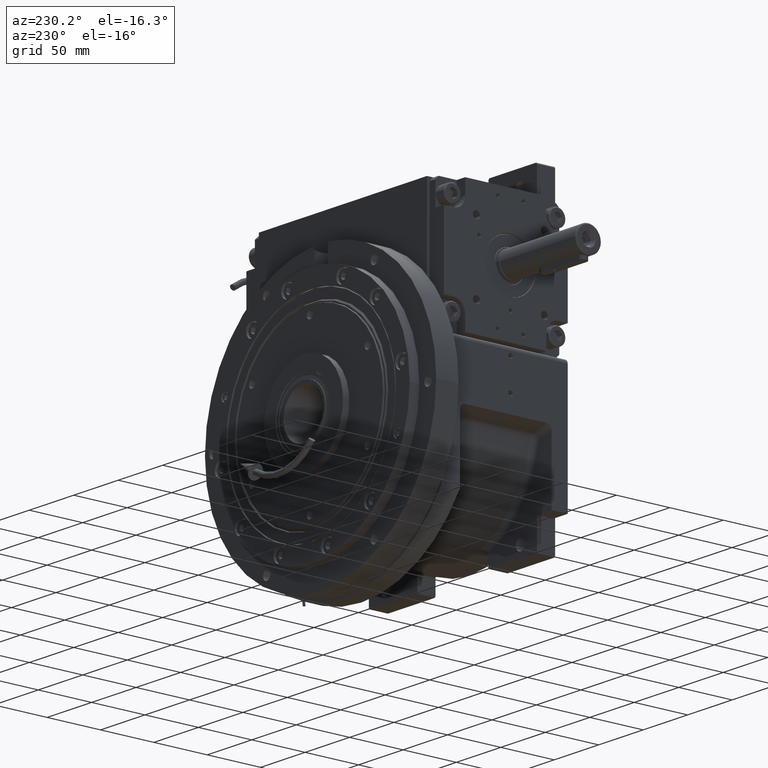
[diagram: clean part render]
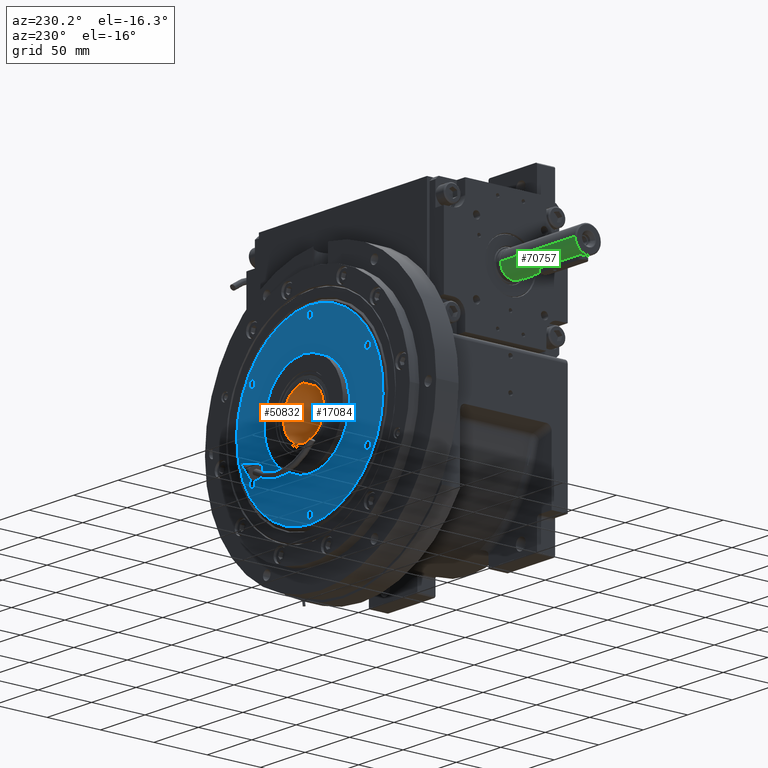
[diagram: same view with three faces highlighted in distinct colors, each labeled with its STEP entity id]
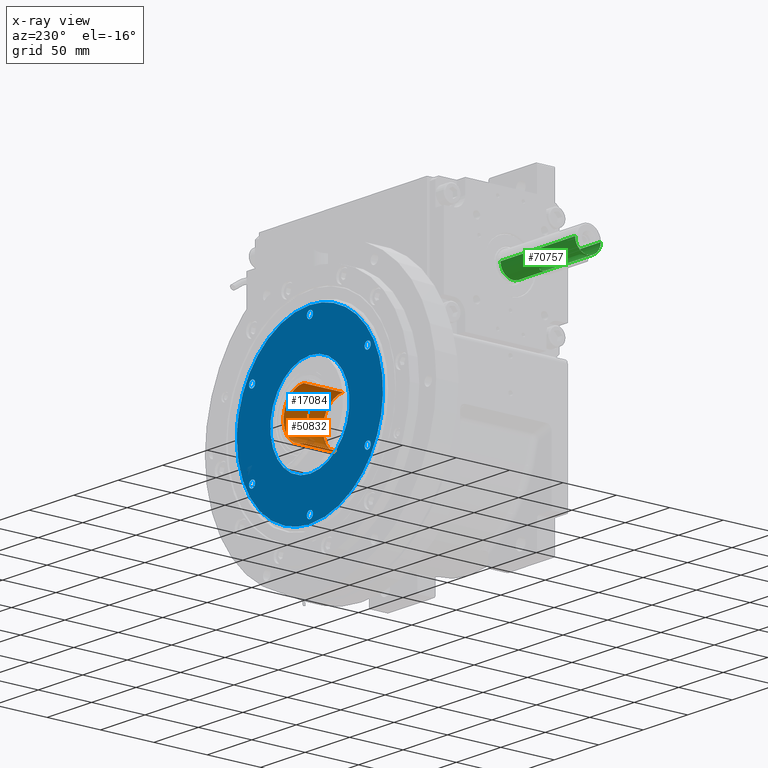
[diagram: x-ray of the same camera — body ghosted, the three highlighted faces saturated]
A machine part, auxiliary view with three faces highlighted in distinct colors.
The next image is the same camera in x-ray (body ghosted, the three faces saturated) — at least one of them is partly hidden behind the body in this view.
Their STEP definitions:

[orange] entity #50832 — the highlighted cylindrical surface (edge-blend (fillet) strip) has radius 22.5 mm, axis along (0, -1, 0).
#434 = VECTOR ( 'NONE', #4083, 1000.000000000000000 ) ;
#1490 = VERTEX_POINT ( 'NONE', #43194 ) ;
#3399 = DIRECTION ( 'NONE',  ( -1.000000000000000000, 0.000000000000000000, 0.000000000000000000 ) ) ;
#4083 = DIRECTION ( 'NONE',  ( 0.000000000000000000, 0.000000000000000000, -1.000000000000000000 ) ) ;
#4627 = EDGE_LOOP ( 'NONE', ( #75003, #19871, #67663, #13908 ) ) ;
#5527 = VERTEX_POINT ( 'NONE', #14344 ) ;
#8346 = EDGE_CURVE ( 'NONE', #19655, #28146, #58724, .T. ) ;
#8877 = DIRECTION ( 'NONE',  ( 1.000000000000000000, -1.578983857244664921E-16, 0.000000000000000000 ) ) ;
#13908 = ORIENTED_EDGE ( 'NONE', *, *, #66194, .F. ) ;
#13915 = EDGE_CURVE ( 'NONE', #1490, #28146, #56119, .T. ) ;
#14344 = CARTESIAN_POINT ( 'NONE',  ( 22.50000000000000000, 1.775709547036180256E-15, 9.999999999999994671 ) ) ;
#19655 = VERTEX_POINT ( 'NONE', #41868 ) ;
#19871 = ORIENTED_EDGE ( 'NONE', *, *, #8346, .T. ) ;
#20811 = AXIS2_PLACEMENT_3D ( 'NONE', #72665, #43588, #65805 ) ;
#28146 = VERTEX_POINT ( 'NONE', #36035 ) ;
#30296 = VECTOR ( 'NONE', #75026, 1000.000000000000000 ) ;
#34822 = LINE ( 'NONE', #51682, #30296 ) ;
#36035 = CARTESIAN_POINT ( 'NONE',  ( -22.50000000000000000, 8.572244476756641794E-16, -26.99999999999999645 ) ) ;
#41311 = FACE_OUTER_BOUND ( 'NONE', #4627, .T. ) ;
#41868 = CARTESIAN_POINT ( 'NONE',  ( 22.50000000000000000, 1.775709547036180256E-15, -26.99999999999999645 ) ) ;
#43194 = CARTESIAN_POINT ( 'NONE',  ( -22.50000000000000000, 8.572244476756641794E-16, 9.999999999999994671 ) ) ;
#43588 = DIRECTION ( 'NONE',  ( 0.000000000000000000, 0.000000000000000000, -1.000000000000000000 ) ) ;
#46730 = EDGE_CURVE ( 'NONE', #5527, #19655, #34822, .T. ) ;
#48549 = CARTESIAN_POINT ( 'NONE',  ( 0.000000000000000000, 2.571673343026990270E-15, 9.999999999999994671 ) ) ;
#49351 = AXIS2_PLACEMENT_3D ( 'NONE', #74672, #67451, #8877 ) ;
#50832 = ADVANCED_FACE ( 'NONE', ( #41311 ), #65428, .F. ) ;
#51682 = CARTESIAN_POINT ( 'NONE',  ( 22.50000000000000000, 5.327128641108539387E-15, 9.999999999999994671 ) ) ;
#56119 = LINE ( 'NONE', #56498, #434 ) ;
#56498 = CARTESIAN_POINT ( 'NONE',  ( -22.50000000000000000, 2.571673343026990270E-15, 9.999999999999994671 ) ) ;
#58724 = CIRCLE ( 'NONE', #20811, 22.50000000000000000 ) ;
#64665 = DIRECTION ( 'NONE',  ( 0.000000000000000000, 0.000000000000000000, 1.000000000000000000 ) ) ;
#65428 = CYLINDRICAL_SURFACE ( 'NONE', #74547, 22.50000000000000000 ) ;
#65805 = DIRECTION ( 'NONE',  ( 1.000000000000000000, -1.578983857244664921E-16, 0.000000000000000000 ) ) ;
#66194 = EDGE_CURVE ( 'NONE', #5527, #1490, #72578, .T. ) ;
#67451 = DIRECTION ( 'NONE',  ( 0.000000000000000000, 0.000000000000000000, -1.000000000000000000 ) ) ;
#67663 = ORIENTED_EDGE ( 'NONE', *, *, #13915, .F. ) ;
#72578 = CIRCLE ( 'NONE', #49351, 22.50000000000000000 ) ;
#72665 = CARTESIAN_POINT ( 'NONE',  ( 0.000000000000000000, 3.552713678800499352E-15, -26.99999999999999645 ) ) ;
#74547 = AXIS2_PLACEMENT_3D ( 'NONE', #48549, #64665, #3399 ) ;
#74672 = CARTESIAN_POINT ( 'NONE',  ( 0.000000000000000000, 3.552713678800499352E-15, 9.999999999999994671 ) ) ;
#75003 = ORIENTED_EDGE ( 'NONE', *, *, #46730, .T. ) ;
#75026 = DIRECTION ( 'NONE',  ( 0.000000000000000000, 0.000000000000000000, -1.000000000000000000 ) ) ;

[blue] entity #17084 — the highlighted planar face has unit normal (0, -1, -0).
#685 = CARTESIAN_POINT ( 'NONE',  ( 34.09999999999973141, 110.5000000000000000, 64.95190528383290030 ) ) ;
#706 = ORIENTED_EDGE ( 'NONE', *, *, #1561, .F. ) ;
#1561 = EDGE_CURVE ( 'NONE', #4782, #9465, #61932, .T. ) ;
#2270 = CARTESIAN_POINT ( 'NONE',  ( 79.57457908632085264, 110.4999999999999858, 20.63093614355465988 ) ) ;
#2645 = CARTESIAN_POINT ( 'NONE',  ( -26.46591210633614466, 110.5000000000000426, 77.99484015378844504 ) ) ;
#3028 = CARTESIAN_POINT ( 'NONE',  ( 41.17346744512528289, 110.4999999999999858, 71.33314274904846286 ) ) ;
#3096 = CARTESIAN_POINT ( 'NONE',  ( -40.89999999999999858, 110.5000000000000000, -64.95190528383290030 ) ) ;
#3106 = CARTESIAN_POINT ( 'NONE',  ( 40.89999999999999858, 110.5000000000000000, -64.95190528383290030 ) ) ;
#3305 = CARTESIAN_POINT ( 'NONE',  ( 2.842170943040403268E-14, 110.5000000000000000, -7.105427357601008170E-15 ) ) ;
#3744 = DIRECTION ( 'NONE',  ( -1.000000000000000000, 4.081702296416015997E-15, 0.000000000000000000 ) ) ;
#4349 = CARTESIAN_POINT ( 'NONE',  ( 82.18217394222040184, 110.4999999999999716, -5.413439777049708468 ) ) ;
#4465 = AXIS2_PLACEMENT_3D ( 'NONE', #42134, #13026, #36357 ) ;
#4782 = VERTEX_POINT ( 'NONE', #35398 ) ;
#4809 = ORIENTED_EDGE ( 'NONE', *, *, #72701, .T. ) ;
#5349 = CIRCLE ( 'NONE', #26082, 3.400000000000000355 ) ;
#5447 = CIRCLE ( 'NONE', #75081, 3.400000000000000355 ) ;
#5488 = CARTESIAN_POINT ( 'NONE',  ( 73.74813151264139321, 110.5000000000000000, -36.37479690083411299 ) ) ;
#5593 = CARTESIAN_POINT ( 'NONE',  ( -34.10000000000026432, 110.5000000000000000, 64.95190528383290030 ) ) ;
#5748 = ORIENTED_EDGE ( 'NONE', *, *, #12178, .F. ) ;
#5872 = CARTESIAN_POINT ( 'NONE',  ( 41.17286106389226319, 110.4999999999999858, -71.33364164011456410 ) ) ;
#6246 = CARTESIAN_POINT ( 'NONE',  ( 69.83423930135026581, 110.4999999999999858, -43.41667302301342346 ) ) ;
#7963 = EDGE_LOOP ( 'NONE', ( #45401, #54329 ) ) ;
#7998 = CARTESIAN_POINT ( 'NONE',  ( 78.32095192439939524, 110.4999999999999858, 25.16328900372727162 ) ) ;
#8371 = CARTESIAN_POINT ( 'NONE',  ( -73.86467355760834153, 110.5000000000000142, 36.43724814399683254 ) ) ;
#8419 = FACE_BOUND ( 'NONE', #10254, .T. ) ;
#8529 = CIRCLE ( 'NONE', #14634, 44.45000000000000284 ) ;
#8558 = CARTESIAN_POINT ( 'NONE',  ( -37.50000000000026290, 110.5000000000000000, 64.95190528383290030 ) ) ;
#8749 = CARTESIAN_POINT ( 'NONE',  ( -36.43677092628834657, 110.5000000000000000, 73.86494086435298811 ) ) ;
#8788 = VERTEX_POINT ( 'NONE', #685 ) ;
#8795 = EDGE_LOOP ( 'NONE', ( #43867, #706 ) ) ;
#8801 = FACE_BOUND ( 'NONE', #8795, .T. ) ;
#8908 = CARTESIAN_POINT ( 'NONE',  ( -82.18412582237159825, 110.5000000000000426, -2.706922455996795041 ) ) ;
#8934 = DIRECTION ( 'NONE',  ( 1.873544649899903038E-30, 1.000000000000000000, -2.089831575764999827E-15 ) ) ;
#9097 = VERTEX_POINT ( 'NONE', #29161 ) ;
#9465 = VERTEX_POINT ( 'NONE', #26496 ) ;
#9505 = CARTESIAN_POINT ( 'NONE',  ( 73.74790136345738745, 110.5000000000000000, 36.37523474268279244 ) ) ;
#9783 = CARTESIAN_POINT ( 'NONE',  ( 34.10000000000000142, 110.5000000000000000, -64.95190528383290030 ) ) ;
#9861 = DIRECTION ( 'NONE',  ( 1.873544649899903038E-30, 1.000000000000000000, 1.588892204136985810E-33 ) ) ;
#10034 = CARTESIAN_POINT ( 'NONE',  ( -80.67302273752034125, 110.5000000000000284, -15.69862675829507204 ) ) ;
#10254 = EDGE_LOOP ( 'NONE', ( #14961, #66626 ) ) ;
#10434 = CARTESIAN_POINT ( 'NONE',  ( 80.54158547785669953, 110.4999999999999858, -16.35931090249731312 ) ) ;
#10631 = CARTESIAN_POINT ( 'NONE',  ( -75.00000000000000000, 110.5000000000000000, 1.043609643147581515E-14 ) ) ;
#11196 = CARTESIAN_POINT ( 'NONE',  ( 54.29822300750021924, 110.4999999999999432, -61.93031885547897986 ) ) ;
#11384 = CARTESIAN_POINT ( 'NONE',  ( 82.18222187922351907, 110.4999999999999858, 5.413844607824314537 ) ) ;
#11574 = CARTESIAN_POINT ( 'NONE',  ( 79.57472203535758126, 110.4999999999999858, -20.63044246711258722 ) ) ;
#11911 = CIRCLE ( 'NONE', #13108, 44.45000000000000284 ) ;
#11938 = VERTEX_POINT ( 'NONE', #60699 ) ;
#12074 = CARTESIAN_POINT ( 'NONE',  ( -75.00000000000000000, 110.5000000000000000, 7.993605777300641153E-15 ) ) ;
#12174 = EDGE_CURVE ( 'NONE', #67565, #49144, #55424, .T. ) ;
#12178 = EDGE_CURVE ( 'NONE', #60125, #9097, #5349, .T. ) ;
#12223 = B_SPLINE_CURVE_WITH_KNOTS ( 'NONE', 3,
 ( #48946, #26720, #14088, #38581, #43976, #14852, #56196, #26344, #50076, #60808, #38201, #73422, #8371, #55440, #20243, #37827, #49697, #61555, #55059, #8749, #2645, #25963, #42841, #32441, #19868, #72668, #37050, #32062, #61183, #3028, #55813, #44347, #67706, #15238, #61940, #32826, #9505, #71911, #60420, #7998, #2270, #31305, #54686, #25584, #27099, #16377, #11384, #21761 ),
 .UNSPECIFIED., .F., .F.,
 ( 4, 1, 1, 1, 2, 2, 2, 2, 2, 2, 2, 2, 2, 2, 2, 2, 2, 2, 2, 2, 2, 1, 1, 1, 2, 2, 4 ),
 ( 0.000000000000000000, 0.03124999999999995837, 0.04687499999999995143, 0.05468749999999994449, 0.05859374999999993755, 0.06249999999999991673, 0.09374999999999993061, 0.1249999999999999445, 0.1874999999999999722, 0.2500000000000000000, 0.3125000000000000000, 0.3750000000000000555, 0.4375000000000000555, 0.5000000000000001110, 0.5625000000000001110, 0.6250000000000001110, 0.6875000000000002220, 0.7500000000000002220, 0.8125000000000001110, 0.8437500000000001110, 0.8750000000000000000, 0.9062500000000000000, 0.9218750000000000000, 0.9296875000000000000, 0.9335937500000000000, 0.9375000000000000000, 1.000000000000000000 ),
 .UNSPECIFIED. ) ;
#12713 = CARTESIAN_POINT ( 'NONE',  ( 74.89780891093313642, 110.5000000000000284, -33.94318345663835856 ) ) ;
#12846 = AXIS2_PLACEMENT_3D ( 'NONE', #10631, #33967, #70346 ) ;
#13026 = DIRECTION ( 'NONE',  ( -1.836909530733546166E-16, -1.000000000000000000, -9.259541093800318768E-31 ) ) ;
#13108 = AXIS2_PLACEMENT_3D ( 'NONE', #3305, #38859, #38103 ) ;
#13606 = CIRCLE ( 'NONE', #62484, 3.400000000000000355 ) ;
#14088 = CARTESIAN_POINT ( 'NONE',  ( -81.98529366466023305, 110.4999999999999716, 6.740478288382624861 ) ) ;
#14445 = ORIENTED_EDGE ( 'NONE', *, *, #67660, .F. ) ;
#14559 = DIRECTION ( 'NONE',  ( -1.000000000000000000, 0.000000000000000000, -1.502066445081090976E-15 ) ) ;
#14634 = AXIS2_PLACEMENT_3D ( 'NONE', #49772, #32518, #14931 ) ;
#14852 = CARTESIAN_POINT ( 'NONE',  ( -80.85911346599473859, 110.4999999999999858, 14.71011054370710980 ) ) ;
#14892 = AXIS2_PLACEMENT_3D ( 'NONE', #73877, #32526, #14559 ) ;
#14931 = DIRECTION ( 'NONE',  ( 1.000000000000000000, -6.244223985518314942E-16, 2.023907469293703493E-16 ) ) ;
#14961 = ORIENTED_EDGE ( 'NONE', *, *, #53649, .F. ) ;
#15011 = CARTESIAN_POINT ( 'NONE',  ( -21.32673791258707396, 110.5000000000000000, -79.55386997823406148 ) ) ;
#15221 = CARTESIAN_POINT ( 'NONE',  ( 75.00000000000000000, 110.5000000000000000, -4.884981308350742420E-15 ) ) ;
#15238 = CARTESIAN_POINT ( 'NONE',  ( 65.33793898011035139, 110.4999999999999716, 50.14568632257584824 ) ) ;
#15399 = CARTESIAN_POINT ( 'NONE',  ( -54.29850716401767841, 110.5000000000000000, -61.92993699073153380 ) ) ;
#15783 = CARTESIAN_POINT ( 'NONE',  ( -71.33364469616624604, 110.5000000000000142, -41.17277949763079903 ) ) ;
#16292 = CIRCLE ( 'NONE', #65213, 3.400000000000000355 ) ;
#16377 = CARTESIAN_POINT ( 'NONE',  ( 81.65593245021590008, 110.4999999999999716, 10.75709170780790025 ) ) ;
#17084 = ADVANCED_FACE ( 'NONE', ( #43645, #8419, #31742, #20295, #37876, #61233, #8801, #26394 ), #49748, .F. ) ;
#17228 = DIRECTION ( 'NONE',  ( 1.000000000000000000, -4.081702296416015997E-15, 0.000000000000000000 ) ) ;
#17321 = CARTESIAN_POINT ( 'NONE',  ( 80.33387830201940005, 110.4999999999999716, -17.35095847086826737 ) ) ;
#18085 = CARTESIAN_POINT ( 'NONE',  ( 80.47346700800821395, 110.4999999999999858, -16.69126919466643955 ) ) ;
#18554 = EDGE_CURVE ( 'NONE', #69430, #53876, #67516, .T. ) ;
#18906 = ORIENTED_EDGE ( 'NONE', *, *, #74274, .F. ) ;
#19137 = B_SPLINE_CURVE_WITH_KNOTS ( 'NONE', 3,
 ( #33392, #4349, #27657, #10434, #18085, #17321, #35299, #11574, #53298, #58664, #12713, #5488, #41809, #6246, #69782, #47181, #11196, #28777, #5872, #41041, #51773, #70162, #29163, #75117, #70532 ),
 .UNSPECIFIED., .F., .F.,
 ( 4, 2, 2, 1, 1, 1, 2, 2, 2, 2, 2, 2, 2, 4 ),
 ( 0.000000000000000000, 0.06249999648971088506, 0.06640624627031782579, 0.07031249605092476651, 0.07812499561213863408, 0.09374999473456628596, 0.1249999929794215758, 0.1562499912242768518, 0.1874999894691321833, 0.2499999859588427631, 0.3124999824485532596, 0.3749999789382638671, 0.4374999754279744746, 0.4999999719176850821 ),
 .UNSPECIFIED. ) ;
#19272 = EDGE_LOOP ( 'NONE', ( #18906, #5748 ) ) ;
#19621 = CARTESIAN_POINT ( 'NONE',  ( 82.18603400874251008, 110.5000015448018047, 1.581323405575299952E-07 ) ) ;
#19868 = CARTESIAN_POINT ( 'NONE',  ( 5.396190313849494657, 110.5000000000000000, 82.18606838660620895 ) ) ;
#20243 = CARTESIAN_POINT ( 'NONE',  ( -65.33761603904908100, 110.5000000000000426, 50.14632643991264871 ) ) ;
#20295 = FACE_BOUND ( 'NONE', #27872, .T. ) ;
#21035 = CIRCLE ( 'NONE', #14892, 3.400000000000000355 ) ;
#21398 = ORIENTED_EDGE ( 'NONE', *, *, #31743, .T. ) ;
#21457 = ORIENTED_EDGE ( 'NONE', *, *, #29822, .F. ) ;
#21535 = CARTESIAN_POINT ( 'NONE',  ( -76.96293238175633178, 110.5000000000000284, -28.95791760141081284 ) ) ;
#21536 = EDGE_LOOP ( 'NONE', ( #21457, #22058 ) ) ;
#21761 = CARTESIAN_POINT ( 'NONE',  ( 82.18603400874251008, 110.5000015448018047, 1.581323405575299952E-07 ) ) ;
#22058 = ORIENTED_EDGE ( 'NONE', *, *, #27419, .T. ) ;
#23016 = CARTESIAN_POINT ( 'NONE',  ( 37.49999999999973710, 110.5000000000000000, 64.95190528383290030 ) ) ;
#23576 = DIRECTION ( 'NONE',  ( 1.873544649899903038E-30, 1.000000000000000000, 1.588892204136985810E-33 ) ) ;
#23733 = DIRECTION ( 'NONE',  ( 1.873544649899903038E-30, 1.000000000000000000, -2.089831575764995094E-15 ) ) ;
#24134 = CIRCLE ( 'NONE', #52205, 3.400000000000000355 ) ;
#24378 = VERTEX_POINT ( 'NONE', #19621 ) ;
#25207 = CARTESIAN_POINT ( 'NONE',  ( 37.49999999999973710, 110.5000000000000000, 64.95190528383290030 ) ) ;
#25214 = DIRECTION ( 'NONE',  ( -1.000000000000000000, 0.000000000000000000, 0.000000000000000000 ) ) ;
#25584 = CARTESIAN_POINT ( 'NONE',  ( 80.47346500646517597, 110.4999999999999716, 16.69135747300155614 ) ) ;
#25963 = CARTESIAN_POINT ( 'NONE',  ( -21.32594694526337165, 110.5000000000000000, 79.55394827524149548 ) ) ;
#26082 = AXIS2_PLACEMENT_3D ( 'NONE', #8558, #8934, #49498 ) ;
#26344 = CARTESIAN_POINT ( 'NONE',  ( -80.67297687466572143, 110.5000000000000284, 15.69867770626846770 ) ) ;
#26394 = FACE_BOUND ( 'NONE', #21536, .T. ) ;
#26496 = CARTESIAN_POINT ( 'NONE',  ( 71.60000000000000853, 110.5000000000000000, -3.645078005937192810E-16 ) ) ;
#26501 = CARTESIAN_POINT ( 'NONE',  ( -5.396965920549728679, 110.4999999999999858, -82.18606886526323763 ) ) ;
#26720 = CARTESIAN_POINT ( 'NONE',  ( -82.18410185386885303, 110.4999999999999858, 2.706720040397336824 ) ) ;
#26799 = EDGE_CURVE ( 'NONE', #49144, #67565, #24134, .T. ) ;
#27099 = CARTESIAN_POINT ( 'NONE',  ( 80.54161329299185468, 110.4999999999999716, 16.35928189945978062 ) ) ;
#27419 = EDGE_CURVE ( 'NONE', #42058, #27511, #11911, .T. ) ;
#27511 = VERTEX_POINT ( 'NONE', #44251 ) ;
#27657 = CARTESIAN_POINT ( 'NONE',  ( 81.65587465362948194, 110.4999999999999432, -10.75668806138983946 ) ) ;
#27872 = EDGE_LOOP ( 'NONE', ( #45933, #55149 ) ) ;
#28777 = CARTESIAN_POINT ( 'NONE',  ( 50.14771722367689222, 110.4999999999999716, -65.33645767331709919 ) ) ;
#29161 = CARTESIAN_POINT ( 'NONE',  ( -40.90000000000026148, 110.5000000000000000, 64.95190528383290030 ) ) ;
#29163 = CARTESIAN_POINT ( 'NONE',  ( 10.74078281828397508, 110.4999999999999716, -81.65971843768956262 ) ) ;
#29821 = VERTEX_POINT ( 'NONE', #3106 ) ;
#29822 = EDGE_CURVE ( 'NONE', #42058, #27511, #8529, .T. ) ;
#30748 = CARTESIAN_POINT ( 'NONE',  ( -37.50000000000000000, 110.5000000000000000, -64.95190528383290030 ) ) ;
#30950 = CARTESIAN_POINT ( 'NONE',  ( 37.50000000000000000, 110.5000000000000000, -64.95190528383290030 ) ) ;
#31173 = CIRCLE ( 'NONE', #12846, 3.400000000000000355 ) ;
#31305 = CARTESIAN_POINT ( 'NONE',  ( 80.11850087870728032, 110.4999999999999574, 18.33894396968164386 ) ) ;
#31493 = DIRECTION ( 'NONE',  ( 1.873544649899903038E-30, 1.000000000000000000, -2.089831575764980106E-15 ) ) ;
#31742 = FACE_BOUND ( 'NONE', #7963, .T. ) ;
#31743 = EDGE_CURVE ( 'NONE', #53876, #24378, #12223, .T. ) ;
#32062 = CARTESIAN_POINT ( 'NONE',  ( 26.46597584794664115, 110.5000000000000000, 77.99473097346013617 ) ) ;
#32441 = CARTESIAN_POINT ( 'NONE',  ( -5.396175763947936410, 110.5000000000000000, 82.18599094346397749 ) ) ;
#32518 = DIRECTION ( 'NONE',  ( 6.394085361170760874E-16, 1.000000000000000000, -2.395852276087255720E-17 ) ) ;
#32526 = DIRECTION ( 'NONE',  ( 1.873544649899903038E-30, 1.000000000000000000, 1.588892204136985810E-33 ) ) ;
#32580 = CARTESIAN_POINT ( 'NONE',  ( -34.10000000000000142, 110.5000000000000000, -64.95190528383290030 ) ) ;
#32778 = CARTESIAN_POINT ( 'NONE',  ( -37.50000000000000000, 110.5000000000000000, -64.95190528383290030 ) ) ;
#32826 = CARTESIAN_POINT ( 'NONE',  ( 71.21633143618713291, 110.5000000000000000, 41.11144999242241482 ) ) ;
#32983 = CARTESIAN_POINT ( 'NONE',  ( -61.93037135062296272, 110.5000000000000142, -54.29808050887305626 ) ) ;
#33392 = CARTESIAN_POINT ( 'NONE',  ( 82.18603400874251008, 110.5000015448018047, 1.581323405575299952E-07 ) ) ;
#33967 = DIRECTION ( 'NONE',  ( 1.873544649899903038E-30, 1.000000000000000000, 1.588892204136985810E-33 ) ) ;
#34030 = EDGE_LOOP ( 'NONE', ( #14445, #35405 ) ) ;
#34854 = DIRECTION ( 'NONE',  ( 1.873544649899903038E-30, 1.000000000000000000, -2.089831575764989967E-15 ) ) ;
#35299 = CARTESIAN_POINT ( 'NONE',  ( 80.11857142980544211, 110.5000000000000142, -18.33865731567764001 ) ) ;
#35364 = DIRECTION ( 'NONE',  ( 1.000000000000000000, 0.000000000000000000, 1.436759208338440266E-15 ) ) ;
#35398 = CARTESIAN_POINT ( 'NONE',  ( 78.40000000000000568, 110.5000000000000000, -3.944304526105059027E-28 ) ) ;
#35405 = ORIENTED_EDGE ( 'NONE', *, *, #52061, .F. ) ;
#35516 = CARTESIAN_POINT ( 'NONE',  ( -37.50000000000026290, 110.5000000000000000, 64.95190528383290030 ) ) ;
#36338 = AXIS2_PLACEMENT_3D ( 'NONE', #35516, #36627, #54261 ) ;
#36357 = DIRECTION ( 'NONE',  ( -1.000000000000000000, 1.836909530733546166E-16, 0.000000000000000000 ) ) ;
#36627 = DIRECTION ( 'NONE',  ( 4.179663151530024898E-15, 1.000000000000000000, 2.089831575764995094E-15 ) ) ;
#37050 = CARTESIAN_POINT ( 'NONE',  ( 21.32597268393185175, 110.4999999999999858, 79.55402177641883554 ) ) ;
#37599 = CARTESIAN_POINT ( 'NONE',  ( -73.86436510405066258, 110.5000000000000000, -36.43783581387070569 ) ) ;
#37827 = CARTESIAN_POINT ( 'NONE',  ( -61.92976105365575279, 110.5000000000000142, 54.29857669836266609 ) ) ;
#37876 = FACE_BOUND ( 'NONE', #19272, .T. ) ;
#37990 = CARTESIAN_POINT ( 'NONE',  ( -80.73621674438206242, 110.5000000000000000, -15.37038518178290758 ) ) ;
#38103 = DIRECTION ( 'NONE',  ( 1.000000000000000000, -3.122111992759157471E-16, 2.823168139440055505E-16 ) ) ;
#38201 = CARTESIAN_POINT ( 'NONE',  ( -77.86821339563776689, 110.5000000000000426, 26.42818210147167335 ) ) ;
#38242 = CARTESIAN_POINT ( 'NONE',  ( 44.44999999999973994, 110.5000000000000000, 5.443555022209685141E-15 ) ) ;
#38581 = CARTESIAN_POINT ( 'NONE',  ( -81.41049721478043466, 110.4999999999999858, 11.40046640563004487 ) ) ;
#38859 = DIRECTION ( 'NONE',  ( -3.197042680585404103E-16, -1.000000000000000000, -2.395852276087259418E-17 ) ) ;
#39119 = CARTESIAN_POINT ( 'NONE',  ( -10.74076764840350862, 110.4999999999999858, -81.65964476131456706 ) ) ;
#40447 = CARTESIAN_POINT ( 'NONE',  ( 40.89999999999973568, 110.5000000000000000, 64.95190528383290030 ) ) ;
#41041 = CARTESIAN_POINT ( 'NONE',  ( 36.43741795798403871, 110.5000000000000142, -73.86467248177763167 ) ) ;
#41753 = DIRECTION ( 'NONE',  ( -1.000000000000000000, 0.000000000000000000, 0.000000000000000000 ) ) ;
#41809 = CARTESIAN_POINT ( 'NONE',  ( 71.21656534630055546, 110.4999999999999858, -41.11101387479465075 ) ) ;
#42058 = VERTEX_POINT ( 'NONE', #38242 ) ;
#42134 = CARTESIAN_POINT ( 'NONE',  ( 2.030702568688749067E-14, 110.5000000000000000, 0.000000000000000000 ) ) ;
#42455 = EDGE_LOOP ( 'NONE', ( #21398, #4809, #56602 ) ) ;
#42841 = CARTESIAN_POINT ( 'NONE',  ( -10.74154236511540184, 110.5000000000000000, 81.65956691445188653 ) ) ;
#43645 = FACE_OUTER_BOUND ( 'NONE', #42455, .T. ) ;
#43867 = ORIENTED_EDGE ( 'NONE', *, *, #45342, .F. ) ;
#43976 = CARTESIAN_POINT ( 'NONE',  ( -81.03738559922308582, 110.5000000000000284, 13.71894467123656725 ) ) ;
#44137 = CARTESIAN_POINT ( 'NONE',  ( -26.46516568415016835, 110.5000000000000284, -77.99506614383170700 ) ) ;
#44251 = CARTESIAN_POINT ( 'NONE',  ( -44.45000000000026574, 110.5000000000000000, -7.258073362946378332E-15 ) ) ;
#44347 = CARTESIAN_POINT ( 'NONE',  ( 54.29876972623154785, 110.4999999999999858, 61.92967476324737675 ) ) ;
#44504 = CARTESIAN_POINT ( 'NONE',  ( -78.39999999999997726, 110.5000000000000000, 2.697109197274817195E-15 ) ) ;
#44849 = AXIS2_PLACEMENT_3D ( 'NONE', #15221, #9861, #35364 ) ;
#44885 = CARTESIAN_POINT ( 'NONE',  ( -41.17304319471159602, 110.5000000000000426, -71.33342587732616380 ) ) ;
#45342 = EDGE_CURVE ( 'NONE', #9465, #4782, #21035, .T. ) ;
#45401 = ORIENTED_EDGE ( 'NONE', *, *, #26799, .F. ) ;
#45933 = ORIENTED_EDGE ( 'NONE', *, *, #58221, .F. ) ;
#46784 = EDGE_CURVE ( 'NONE', #29821, #53332, #67040, .T. ) ;
#47181 = CARTESIAN_POINT ( 'NONE',  ( 61.93063791654595462, 110.5000000000000000, -54.29769947772633287 ) ) ;
#47463 = DIRECTION ( 'NONE',  ( 1.000000000000000000, 0.000000000000000000, 0.000000000000000000 ) ) ;
#48562 = DIRECTION ( 'NONE',  ( 1.873544649899903038E-30, 1.000000000000000000, 2.089831575764995094E-15 ) ) ;
#48934 = VERTEX_POINT ( 'NONE', #40447 ) ;
#48946 = CARTESIAN_POINT ( 'NONE',  ( -82.18603400874098952, 110.5000015448012078, -1.581323299043360018E-07 ) ) ;
#49104 = CARTESIAN_POINT ( 'NONE',  ( -79.42706700825716837, 110.5000000000000000, -21.28825086087052298 ) ) ;
#49144 = VERTEX_POINT ( 'NONE', #3096 ) ;
#49498 = DIRECTION ( 'NONE',  ( 1.000000000000000000, 0.000000000000000000, 0.000000000000000000 ) ) ;
#49697 = CARTESIAN_POINT ( 'NONE',  ( -54.29909472632881773, 110.5000000000000000, 61.92944677904171868 ) ) ;
#49748 = PLANE ( 'NONE',  #4465 ) ;
#49772 = CARTESIAN_POINT ( 'NONE',  ( 1.776356839400212599E-14, 110.5000000000000000, -3.552713678800504085E-15 ) ) ;
#49857 = CARTESIAN_POINT ( 'NONE',  ( -80.85914935550086113, 110.5000000000000142, -14.71020086056657838 ) ) ;
#50076 = CARTESIAN_POINT ( 'NONE',  ( -80.08037051196102141, 110.5000000000000142, 18.67829002333699506 ) ) ;
#50087 = CARTESIAN_POINT ( 'NONE',  ( -82.18603400874098952, 110.5000015448012078, -1.581323299043360018E-07 ) ) ;
#50238 = CARTESIAN_POINT ( 'NONE',  ( -50.14754556814370545, 110.5000000000000000, -65.33666926840521683 ) ) ;
#50612 = CARTESIAN_POINT ( 'NONE',  ( -65.33708734634375048, 110.5000000000000142, -50.14696052069778887 ) ) ;
#51773 = CARTESIAN_POINT ( 'NONE',  ( 26.46527515611211356, 110.5000000000000284, -77.99510436064866781 ) ) ;
#52061 = EDGE_CURVE ( 'NONE', #48934, #8788, #13606, .T. ) ;
#52205 = AXIS2_PLACEMENT_3D ( 'NONE', #32778, #61144, #3744 ) ;
#52978 = AXIS2_PLACEMENT_3D ( 'NONE', #30748, #31493, #72477 ) ;
#53298 = CARTESIAN_POINT ( 'NONE',  ( 78.32115647600109298, 110.4999999999999716, -25.16263082416817198 ) ) ;
#53332 = VERTEX_POINT ( 'NONE', #9783 ) ;
#53649 = EDGE_CURVE ( 'NONE', #53332, #29821, #71234, .T. ) ;
#53876 = VERTEX_POINT ( 'NONE', #50087 ) ;
#54261 = DIRECTION ( 'NONE',  ( -1.000000000000000000, 4.081702296416015997E-15, 0.000000000000000000 ) ) ;
#54329 = ORIENTED_EDGE ( 'NONE', *, *, #12174, .F. ) ;
#54686 = CARTESIAN_POINT ( 'NONE',  ( 80.33384769217845189, 110.4999999999999858, 17.35112966435321979 ) ) ;
#55059 = CARTESIAN_POINT ( 'NONE',  ( -41.17372798125234112, 110.5000000000000142, 71.33306199257258129 ) ) ;
#55149 = ORIENTED_EDGE ( 'NONE', *, *, #66833, .F. ) ;
#55424 = CIRCLE ( 'NONE', #52978, 3.400000000000000355 ) ;
#55440 = CARTESIAN_POINT ( 'NONE',  ( -71.33312151958747904, 110.5000000000000142, 41.17344376063476830 ) ) ;
#55813 = CARTESIAN_POINT ( 'NONE',  ( 50.14712887847355915, 110.4999999999999716, 65.33694734459872677 ) ) ;
#56196 = CARTESIAN_POINT ( 'NONE',  ( -80.73618378714648713, 110.5000000000000142, 15.37033942092474881 ) ) ;
#56602 = ORIENTED_EDGE ( 'NONE', *, *, #18554, .T. ) ;
#58221 = EDGE_CURVE ( 'NONE', #64740, #11938, #31173, .T. ) ;
#58664 = CARTESIAN_POINT ( 'NONE',  ( 76.96232867576274828, 110.5000000000000142, -28.95928036596271227 ) ) ;
#60125 = VERTEX_POINT ( 'NONE', #5593 ) ;
#60420 = CARTESIAN_POINT ( 'NONE',  ( 76.96221393906922970, 110.4999999999999716, 28.95965176232081362 ) ) ;
#60699 = CARTESIAN_POINT ( 'NONE',  ( -71.59999999999998010, 110.5000000000000000, 3.061616997868142046E-15 ) ) ;
#60808 = CARTESIAN_POINT ( 'NONE',  ( -79.42723460417914794, 110.5000000000000142, 21.28768615169941825 ) ) ;
#61144 = DIRECTION ( 'NONE',  ( 4.179663151530035154E-15, 1.000000000000000000, 2.089831575764980106E-15 ) ) ;
#61183 = CARTESIAN_POINT ( 'NONE',  ( 36.43673274471090195, 110.5000000000000142, 73.86503631034787531 ) ) ;
#61233 = FACE_BOUND ( 'NONE', #34030, .T. ) ;
#61338 = CARTESIAN_POINT ( 'NONE',  ( -81.41054315470101699, 110.5000000000000142, -11.40073033654709000 ) ) ;
#61555 = CARTESIAN_POINT ( 'NONE',  ( -50.14684274527402152, 110.5000000000000142, 65.33704237330343290 ) ) ;
#61932 = CIRCLE ( 'NONE', #44849, 3.400000000000000355 ) ;
#61940 = CARTESIAN_POINT ( 'NONE',  ( 69.83408181518969116, 110.4999999999999858, 43.41695845024568001 ) ) ;
#62107 = CARTESIAN_POINT ( 'NONE',  ( -1.048367022895735268E-10, 110.5000000000000142, -82.18603692326404087 ) ) ;
#62484 = AXIS2_PLACEMENT_3D ( 'NONE', #25207, #48562, #47463 ) ;
#62486 = CARTESIAN_POINT ( 'NONE',  ( -80.08026981023135704, 110.5000000000000142, -18.67866566709026444 ) ) ;
#63912 = DIRECTION ( 'NONE',  ( 4.179663151530035154E-15, 1.000000000000000000, 2.089831575764989967E-15 ) ) ;
#64524 = DIRECTION ( 'NONE',  ( 1.000000000000000000, 0.000000000000000000, -2.351060522735629490E-15 ) ) ;
#64740 = VERTEX_POINT ( 'NONE', #44504 ) ;
#65213 = AXIS2_PLACEMENT_3D ( 'NONE', #23016, #34854, #41753 ) ;
#66626 = ORIENTED_EDGE ( 'NONE', *, *, #46784, .F. ) ;
#66721 = CARTESIAN_POINT ( 'NONE',  ( -81.03742544091511490, 110.5000000000000284, -13.71909706410294660 ) ) ;
#66833 = EDGE_CURVE ( 'NONE', #11938, #64740, #5447, .T. ) ;
#67040 = CIRCLE ( 'NONE', #71882, 3.400000000000000355 ) ;
#67101 = CARTESIAN_POINT ( 'NONE',  ( -77.86803878220746356, 110.5000000000000284, -26.42874468702228441 ) ) ;
#67516 = B_SPLINE_CURVE_WITH_KNOTS ( 'NONE', 3,
 ( #62107, #26501, #39119, #15011, #44137, #73583, #44885, #50238, #15399, #32983, #50612, #15783, #37599, #21535, #67101, #49104, #62486, #10034, #37990, #49857, #66721, #61338, #72444, #8908, #73203 ),
 .UNSPECIFIED., .F., .F.,
 ( 4, 2, 2, 2, 2, 2, 2, 2, 2, 2, 1, 1, 1, 4 ),
 ( 0.4999999719176850821, 0.5624999754279744746, 0.6249999789382639781, 0.6874999824485534816, 0.7499999859588428741, 0.8124999894691323776, 0.8749999929794217701, 0.9062499947345665774, 0.9374999964897112736, 0.9414062467091042219, 0.9453124969284972812, 0.9531249973672833997, 0.9687499982448555258, 1.000000000000000000 ),
 .UNSPECIFIED. ) ;
#67565 = VERTEX_POINT ( 'NONE', #32580 ) ;
#67572 = AXIS2_PLACEMENT_3D ( 'NONE', #30950, #23733, #25214 ) ;
#67660 = EDGE_CURVE ( 'NONE', #8788, #48934, #16292, .T. ) ;
#67706 = CARTESIAN_POINT ( 'NONE',  ( 61.93011393209871329, 110.4999999999999858, 54.29833759267260263 ) ) ;
#69385 = CIRCLE ( 'NONE', #36338, 3.400000000000000355 ) ;
#69430 = VERTEX_POINT ( 'NONE', #70019 ) ;
#69688 = CARTESIAN_POINT ( 'NONE',  ( 37.50000000000000000, 110.5000000000000000, -64.95190528383290030 ) ) ;
#69782 = CARTESIAN_POINT ( 'NONE',  ( 65.33763228115991240, 110.4999999999999858, -50.14630245138530995 ) ) ;
#70019 = CARTESIAN_POINT ( 'NONE',  ( -1.048367022895735268E-10, 110.5000000000000142, -82.18603692326404087 ) ) ;
#70162 = CARTESIAN_POINT ( 'NONE',  ( 21.32671897775462355, 110.5000000000000142, -79.55379426815670740 ) ) ;
#70346 = DIRECTION ( 'NONE',  ( -1.000000000000000000, 0.000000000000000000, -3.069440126904851792E-15 ) ) ;
#70532 = CARTESIAN_POINT ( 'NONE',  ( -1.048367022895735268E-10, 110.5000000000000142, -82.18603692326404087 ) ) ;
#71234 = CIRCLE ( 'NONE', #67572, 3.400000000000000355 ) ;
#71882 = AXIS2_PLACEMENT_3D ( 'NONE', #69688, #63912, #17228 ) ;
#71911 = CARTESIAN_POINT ( 'NONE',  ( 74.89794069821219580, 110.5000000000000142, 33.94279222128608353 ) ) ;
#72444 = CARTESIAN_POINT ( 'NONE',  ( -81.98533930688320481, 110.5000000000000000, -6.740832071539393233 ) ) ;
#72477 = DIRECTION ( 'NONE',  ( 1.000000000000000000, 0.000000000000000000, 0.000000000000000000 ) ) ;
#72668 = CARTESIAN_POINT ( 'NONE',  ( 10.74154536275718641, 110.5000000000000000, 81.65949047945815664 ) ) ;
#72701 = EDGE_CURVE ( 'NONE', #24378, #69430, #19137, .T. ) ;
#73203 = CARTESIAN_POINT ( 'NONE',  ( -82.18603400874098952, 110.5000015448012078, -1.581323299043360018E-07 ) ) ;
#73422 = CARTESIAN_POINT ( 'NONE',  ( -76.96276536764067089, 110.5000000000000142, 28.95822631422415583 ) ) ;
#73583 = CARTESIAN_POINT ( 'NONE',  ( -36.43753282681043260, 110.4999999999999858, -73.86470531561997177 ) ) ;
#73877 = CARTESIAN_POINT ( 'NONE',  ( 75.00000000000000000, 110.5000000000000000, 5.107025913275650666E-15 ) ) ;
#74274 = EDGE_CURVE ( 'NONE', #9097, #60125, #69385, .T. ) ;
#75081 = AXIS2_PLACEMENT_3D ( 'NONE', #12074, #23576, #64524 ) ;
#75117 = CARTESIAN_POINT ( 'NONE',  ( 5.396965314102869726, 110.4999999999999858, -82.18599046470633596 ) ) ;

[green] entity #70757 — the highlighted cylindrical surface (edge-blend (fillet) strip) has radius 12 mm, axis along (1, 0, -0).
#1871 = VERTEX_POINT ( 'NONE', #8174 ) ;
#2552 = CARTESIAN_POINT ( 'NONE',  ( 3.735698482422293853, -147.4305249007924488, 11.40354277325483956 ) ) ;
#2814 = CARTESIAN_POINT ( 'NONE',  ( 3.699574326626897225, -102.4790903270227176, 11.41524500271610698 ) ) ;
#3077 = ORIENTED_EDGE ( 'NONE', *, *, #28048, .F. ) ;
#3196 = CARTESIAN_POINT ( 'NONE',  ( 3.999999999999908074, -103.7339170370940309, 11.31594613355049717 ) ) ;
#3290 = CARTESIAN_POINT ( 'NONE',  ( -2.619744293201467844, -149.0245836132340003, 11.71050883088096661 ) ) ;
#3309 = CARTESIAN_POINT ( 'NONE',  ( 3.537532643194290394, -147.8851738373130047, 11.46892142085798838 ) ) ;
#3342 = VERTEX_POINT ( 'NONE', #66847 ) ;
#3581 = CARTESIAN_POINT ( 'NONE',  ( -1.509746845158227879, -100.2958408659230400, 11.90463342317242557 ) ) ;
#3671 = CARTESIAN_POINT ( 'NONE',  ( -3.689323843912795997, -147.5456055590248354, 11.41856806441072791 ) ) ;
#3691 = CARTESIAN_POINT ( 'NONE',  ( 3.999999999999901412, -145.9999999999989484, 11.31370849898476116 ) ) ;
#3957 = CARTESIAN_POINT ( 'NONE',  ( 2.349599110892425902, -100.7523390959093490, 11.76855073011647512 ) ) ;
#4060 = CARTESIAN_POINT ( 'NONE',  ( 3.629036513765652394, -147.6906129958233578, 11.43810876131363052 ) ) ;
#4725 = CARTESIAN_POINT ( 'NONE',  ( 6.043324407964786538, -151.9997947750962339, 10.48525733006584382 ) ) ;
#4797 = CARTESIAN_POINT ( 'NONE',  ( -4.000000000000098588, -145.9999999999989484, 11.31370849898528874 ) ) ;
#5100 = CARTESIAN_POINT ( 'NONE',  ( -1.570769457861378005, -151.9997947750979392, 11.99979476857044602 ) ) ;
#5146 = ORIENTED_EDGE ( 'NONE', *, *, #9828, .T. ) ;
#5845 = CARTESIAN_POINT ( 'NONE',  ( -3.079027699092431902, -101.4222236022316821, 11.60118768149467172 ) ) ;
#6223 = CARTESIAN_POINT ( 'NONE',  ( -4.000000000000098588, -103.9999999999989484, 11.31370849898476116 ) ) ;
#6988 = ORIENTED_EDGE ( 'NONE', *, *, #31628, .F. ) ;
#8174 = CARTESIAN_POINT ( 'NONE',  ( 11.99994868217576105, -151.9999487036159280, -2.030395018781661065E-07 ) ) ;
#8655 = CARTESIAN_POINT ( 'NONE',  ( 1.575219062931771719, -149.6768093533525814, 11.89614764743494923 ) ) ;
#8919 = CARTESIAN_POINT ( 'NONE',  ( -1.707323829167209928, -100.3780104456581483, 11.87917342716929170 ) ) ;
#9011 = CARTESIAN_POINT ( 'NONE',  ( -2.769025502775935621, -148.8868974129646858, 11.67618901952170596 ) ) ;
#9032 = CARTESIAN_POINT ( 'NONE',  ( 1.913031656063413077, -149.5146337911320984, 11.84605157478665305 ) ) ;
#9293 = CARTESIAN_POINT ( 'NONE',  ( 3.629062244195458753, -102.3094488507544071, 11.43809697256373781 ) ) ;
#9406 = CARTESIAN_POINT ( 'NONE',  ( 3.775511855360285995, -147.3239760804046341, 11.39065374369450190 ) ) ;
#9781 = CARTESIAN_POINT ( 'NONE',  ( 2.948766456929104329, -148.7030738139984578, 11.63230750931506030 ) ) ;
#9828 = EDGE_CURVE ( 'NONE', #74192, #22009, #54747, .T. ) ;
#10118 = EDGE_CURVE ( 'NONE', #64822, #26252, #45535, .T. ) ;
#10131 = CARTESIAN_POINT ( 'NONE',  ( -3.262853687193909558, -148.3284766358502793, 11.55044321347706671 ) ) ;
#10412 = CARTESIAN_POINT ( 'NONE',  ( 1.548340007462611023, -100.3118227294141036, 11.89967819649157121 ) ) ;
#10605 = FACE_OUTER_BOUND ( 'NONE', #36460, .T. ) ;
#10664 = DIRECTION ( 'NONE',  ( 4.696245347539746060E-31, -1.000000000000000000, -1.405158487424927278E-30 ) ) ;
#10797 = CARTESIAN_POINT ( 'NONE',  ( -4.000000000000097700, -103.4677397947731237, 11.31818472352131266 ) ) ;
#11555 = CARTESIAN_POINT ( 'NONE',  ( -3.663686540708009698, -102.3943006447392037, 11.42692202319487649 ) ) ;
#11991 = B_SPLINE_CURVE_WITH_KNOTS ( 'NONE', 3,
 ( #39502, #3196, #68627, #56365, #20793, #21545, #38000, #26512, #32615, #67872, #2814, #21923, #33366, #9293, #21167, #56743, #15024, #49866, #20410, #38750, #62496, #50990, #74338, #67498, #3957, #45269, #73210, #26131, #16167, #44896, #62864, #68256, #27260, #10412, #44522, #33745, #61348, #49486, #15791, #72834, #44146, #55983, #38375, #15409, #67111, #50624, #3581, #14645, #62119, #26894, #8919, #50248, #23804, #22304, #40639, #40264, #34506, #17680, #39877, #29141, #5845, #58640, #63985, #64761, #46780, #69759, #45638, #11555, #51373, #34131, #16927, #75472, #64372, #34891, #10797, #6223 ),
 .UNSPECIFIED., .F., .F.,
 ( 4, 2, 2, 1, 1, 1, 1, 2, 2, 2, 2, 2, 2, 2, 2, 2, 2, 1, 1, 1, 2, 2, 2, 2, 2, 1, 1, 1, 1, 2, 2, 2, 2, 2, 2, 2, 2, 2, 2, 1, 1, 1, 2, 2, 4 ),
 ( 0.000000000000000000, 0.06250000000003741452, 0.09375000000005613565, 0.1093750000000639211, 0.1171875000000678207, 0.1210937500000713318, 0.1230468750000745931, 0.1240234375000761891, 0.1250000000000777989, 0.1875000000001374179, 0.2187500000001671996, 0.2343750000001831313, 0.2421875000001901534, 0.2500000000001971756, 0.3125000000002581269, 0.3437500000002877143, 0.3593750000003033684, 0.3671875000003111955, 0.3710937500003151368, 0.3730468750003170797, 0.3740234375003171352, 0.3750000000003172462, 0.5000000000002472467, 0.5625000000002121636, 0.5937500000001946221, 0.6093750000001859624, 0.6171875000001820766, 0.6210937500001801892, 0.6230468750001791900, 0.6240234375001794120, 0.6250000000001795231, 0.6875000000001560974, 0.7187500000001443290, 0.7343750000001385558, 0.7421875000001356693, 0.7500000000001327827, 0.8125000000001131317, 0.8437500000001018075, 0.8593750000000962563, 0.8671875000000954792, 0.8710937500000929257, 0.8730468750000892619, 0.8740234375000875966, 0.8750000000000858202, 1.000000000000000000 ),
 .UNSPECIFIED. ) ;
#13994 = CARTESIAN_POINT ( 'NONE',  ( 2.890255052237983957, -148.7655482990624307, 11.64685615969773202 ) ) ;
#14645 = CARTESIAN_POINT ( 'NONE',  ( -1.521728684114233898, -100.3007621773020617, 11.90310702580341484 ) ) ;
#14737 = CARTESIAN_POINT ( 'NONE',  ( -3.079074909211996669, -148.5777291913911142, 11.60117590417430478 ) ) ;
#14883 = VECTOR ( 'NONE', #15686, 1000.000000000000000 ) ;
#14919 = DIRECTION ( 'NONE',  ( 4.696245347539746060E-31, -1.000000000000000000, -1.405158487424927278E-30 ) ) ;
#15024 = CARTESIAN_POINT ( 'NONE',  ( 3.251291049507009756, -101.6648900688680328, 11.55293394859301870 ) ) ;
#15117 = CARTESIAN_POINT ( 'NONE',  ( -1.216588470613630957, -149.8110972850863618, 11.93812179959377318 ) ) ;
#15137 = CARTESIAN_POINT ( 'NONE',  ( 3.694382607221059711, -147.5334744883815290, 11.41692730299294034 ) ) ;
#15409 = CARTESIAN_POINT ( 'NONE',  ( -1.313297141567054460, -100.2206569531970075, 11.92808629055551783 ) ) ;
#15497 = CARTESIAN_POINT ( 'NONE',  ( -3.468898354397100814, -147.9959330183631891, 11.48928861605258334 ) ) ;
#15686 = DIRECTION ( 'NONE',  ( 4.696245347539746060E-31, -1.000000000000000000, -1.405158487424927278E-30 ) ) ;
#15791 = CARTESIAN_POINT ( 'NONE',  ( -0.2494598929982727586, -99.99999998831496839, 11.99989872550663783 ) ) ;
#16167 = CARTESIAN_POINT ( 'NONE',  ( 1.716692826822445506, -100.3867546663510097, 11.87635300817285255 ) ) ;
#16255 = CARTESIAN_POINT ( 'NONE',  ( -1.509754560000293733, -149.7041559801137112, 11.90463304553092350 ) ) ;
#16927 = CARTESIAN_POINT ( 'NONE',  ( -3.689322153360460099, -102.4543904039169746, 11.41856880192089996 ) ) ;
#17316 = CARTESIAN_POINT ( 'NONE',  ( 1.570769465498460082, -151.9997947750972571, 11.99979476757146912 ) ) ;
#17680 = CARTESIAN_POINT ( 'NONE',  ( -2.709279720928532864, -101.0569602444978301, 11.69009140169868566 ) ) ;
#17697 = CARTESIAN_POINT ( 'NONE',  ( 10.48525733198956544, -151.9997947750947560, 6.043324404629605517 ) ) ;
#18489 = VECTOR ( 'NONE', #10664, 1000.000000000000000 ) ;
#19214 = CIRCLE ( 'NONE', #55908, 12.00000000000000000 ) ;
#20410 = CARTESIAN_POINT ( 'NONE',  ( 3.058940960086304450, -101.4212951656044766, 11.60428932796720503 ) ) ;
#20524 = CARTESIAN_POINT ( 'NONE',  ( 3.704190937345960499, -147.5096637110436859, 11.41374856869818544 ) ) ;
#20793 = CARTESIAN_POINT ( 'NONE',  ( 3.863581441579697628, -102.9560767697370238, 11.36208603732841205 ) ) ;
#20877 = CARTESIAN_POINT ( 'NONE',  ( -3.686248005576312714, -147.5529408065270331, 11.41956700943392100 ) ) ;
#21167 = CARTESIAN_POINT ( 'NONE',  ( 3.537579926633076077, -102.1149148848847830, 11.46890374322240014 ) ) ;
#21257 = CARTESIAN_POINT ( 'NONE',  ( -1.521733132987577619, -149.6992359912096617, 11.90310680778958208 ) ) ;
#21279 = CARTESIAN_POINT ( 'NONE',  ( 3.863564075768672446, -147.0439860254020346, 11.36208672240900519 ) ) ;
#21545 = CARTESIAN_POINT ( 'NONE',  ( 3.806373760948165152, -102.7688305930672215, 11.38066154900160143 ) ) ;
#21819 = CARTESIAN_POINT ( 'NONE',  ( 3.999999999999901412, -103.9999999999989484, 11.31370849898476116 ) ) ;
#21923 = CARTESIAN_POINT ( 'NONE',  ( 3.696484159103572864, -102.4715951802323701, 11.41624633300206426 ) ) ;
#22009 = VERTEX_POINT ( 'NONE', #63457 ) ;
#22017 = CARTESIAN_POINT ( 'NONE',  ( -3.630806810231152149, -147.6796265144054985, 11.43767089832616080 ) ) ;
#22304 = CARTESIAN_POINT ( 'NONE',  ( -2.354307630236405657, -100.7627802155551819, 11.76632283915562915 ) ) ;
#22317 = CARTESIAN_POINT ( 'NONE',  ( -9.595837987862077867, -151.9997947751001277, 7.374434519894171203 ) ) ;
#22394 = CARTESIAN_POINT ( 'NONE',  ( -5.209456776280149809E-09, -149.9999371263864703, 11.99994762482602795 ) ) ;
#23395 = ORIENTED_EDGE ( 'NONE', *, *, #57176, .F. ) ;
#23804 = CARTESIAN_POINT ( 'NONE',  ( -2.239186958252464610, -100.6829197926462740, 11.78850252895083983 ) ) ;
#25325 = EDGE_CURVE ( 'NONE', #27031, #74192, #19214, .T. ) ;
#26131 = CARTESIAN_POINT ( 'NONE',  ( 1.764588981956813685, -100.4098312003743558, 11.86919425444349230 ) ) ;
#26252 = VERTEX_POINT ( 'NONE', #63700 ) ;
#26408 = CARTESIAN_POINT ( 'NONE',  ( -12.00000000000000000, -68.00000000000000000, 1.387778780781445676E-14 ) ) ;
#26512 = CARTESIAN_POINT ( 'NONE',  ( 3.735705565527109862, -102.5694933891316936, 11.40354256314130765 ) ) ;
#26602 = CARTESIAN_POINT ( 'NONE',  ( -2.239284116492090693, -149.3170146183479687, 11.78848291445097729 ) ) ;
#26894 = CARTESIAN_POINT ( 'NONE',  ( -1.535046074182470521, -100.3062699350030584, 11.90139969291229960 ) ) ;
#26998 = CARTESIAN_POINT ( 'NONE',  ( 3.331479687395642042, -148.2177122203083286, 11.53007601489434109 ) ) ;
#27031 = VERTEX_POINT ( 'NONE', #33563 ) ;
#27260 = CARTESIAN_POINT ( 'NONE',  ( 1.556361663364205450, -100.3151936917845433, 11.89863201655514757 ) ) ;
#27351 = CARTESIAN_POINT ( 'NONE',  ( -3.526033798661950325, -147.8917057813545171, 11.47139449001465827 ) ) ;
#27723 = CARTESIAN_POINT ( 'NONE',  ( -3.691821230797968312, -147.5396338606281006, 11.41775749649348448 ) ) ;
#27885 = LINE ( 'NONE', #68880, #18489 ) ;
#28023 = CARTESIAN_POINT ( 'NONE',  ( -12.00000000000000000, -151.9999743518074524, 5.273559366969493567E-13 ) ) ;
#28048 = EDGE_CURVE ( 'NONE', #1871, #22009, #34409, .T. ) ;
#28102 = CARTESIAN_POINT ( 'NONE',  ( -1.425745212710184173, -149.7375551737652586, 11.91502111437401545 ) ) ;
#28205 = DIRECTION ( 'NONE',  ( -4.696245347539746060E-31, 1.000000000000000000, 1.405158487424927278E-30 ) ) ;
#28402 = CARTESIAN_POINT ( 'NONE',  ( -6.043324401290260717, -151.9997947750990193, 10.48525733390949277 ) ) ;
#29141 = CARTESIAN_POINT ( 'NONE',  ( -2.797420589597238383, -101.1405601029153729, 11.66945702287196518 ) ) ;
#29829 = ORIENTED_EDGE ( 'NONE', *, *, #10118, .T. ) ;
#31591 = CARTESIAN_POINT ( 'NONE',  ( 3.806359065673945441, -147.2312145265389063, 11.38066204966765227 ) ) ;
#31628 = EDGE_CURVE ( 'NONE', #27031, #1871, #41709, .T. ) ;
#32325 = CARTESIAN_POINT ( 'NONE',  ( -3.663697562788695627, -147.6056740266933502, 11.42691718196561546 ) ) ;
#32344 = CARTESIAN_POINT ( 'NONE',  ( 2.590105379223375248, -149.0667966163281335, 11.71971595617681849 ) ) ;
#32615 = CARTESIAN_POINT ( 'NONE',  ( 3.714853181619652389, -102.5166502653488578, 11.41029518894455208 ) ) ;
#32725 = CARTESIAN_POINT ( 'NONE',  ( 3.895711502883902000, -146.9168907657007139, 11.35158058529664338 ) ) ;
#33080 = CARTESIAN_POINT ( 'NONE',  ( -3.598150236804253499, -147.7481936824941045, 11.44828941061310523 ) ) ;
#33101 = CARTESIAN_POINT ( 'NONE',  ( 3.109641635881687183, -148.5171483032601429, 11.59099524640451229 ) ) ;
#33366 = CARTESIAN_POINT ( 'NONE',  ( 3.694382304172298070, -102.4665247833040382, 11.41692747919316098 ) ) ;
#33456 = CARTESIAN_POINT ( 'NONE',  ( -2.530698596057247673, -149.0985726136927951, 11.72966897524224628 ) ) ;
#33563 = CARTESIAN_POINT ( 'NONE',  ( 12.00000000000000000, -68.00000000000000000, 0.000000000000000000 ) ) ;
#33745 = CARTESIAN_POINT ( 'NONE',  ( 1.541685518694816404, -100.3090347559563327, 11.90054302614941406 ) ) ;
#34131 = CARTESIAN_POINT ( 'NONE',  ( -3.686245124442066423, -102.4470523423366188, 11.41956828634807408 ) ) ;
#34148 = CARTESIAN_POINT ( 'NONE',  ( 11.99994868217576105, -151.9999487036159280, -2.030395018781661065E-07 ) ) ;
#34409 = B_SPLINE_CURVE_WITH_KNOTS ( 'NONE', 3,
 ( #34148, #68641, #46797, #17697, #57513, #40279, #4725, #70155, #17316, #5100, #51766, #28402, #51389, #22317, #40653, #34907, #75111, #28023 ),
 .UNSPECIFIED., .F., .F.,
 ( 4, 2, 2, 2, 2, 2, 2, 2, 4 ),
 ( 0.000000000000000000, 0.1250000000000000000, 0.2500000000000000000, 0.3750000000000000000, 0.5000000000000000000, 0.6250000000000000000, 0.7500000000000000000, 0.8750000000000000000, 1.000000000000000000 ),
 .UNSPECIFIED. ) ;
#34506 = CARTESIAN_POINT ( 'NONE',  ( -2.679420143699406509, -101.0297659510924291, 11.69690054606983409 ) ) ;
#34891 = CARTESIAN_POINT ( 'NONE',  ( -3.892528952966257005, -102.9430103308231566, 11.35269961468885924 ) ) ;
#34907 = CARTESIAN_POINT ( 'NONE',  ( -11.68747222785365203, -151.9997947751011793, 3.140920900090112156 ) ) ;
#36460 = EDGE_LOOP ( 'NONE', ( #6988, #39548, #5146, #3077 ) ) ;
#36773 = VECTOR ( 'NONE', #14919, 1000.000000000000000 ) ;
#38000 = CARTESIAN_POINT ( 'NONE',  ( 3.775524141864289973, -102.6760581777134007, 11.39065335841106652 ) ) ;
#38088 = CARTESIAN_POINT ( 'NONE',  ( -2.797414604489022683, -148.8594458817394468, 11.66945851017473501 ) ) ;
#38375 = CARTESIAN_POINT ( 'NONE',  ( -1.216515129824272012, -100.1888791332931845, 11.93812528880608070 ) ) ;
#38448 = VERTEX_POINT ( 'NONE', #39957 ) ;
#38485 = CARTESIAN_POINT ( 'NONE',  ( 3.696483499933708838, -147.5284064120576204, 11.41624635625648665 ) ) ;
#38750 = CARTESIAN_POINT ( 'NONE',  ( 2.977047870095572257, -101.3281288234234552, 11.62518214365307401 ) ) ;
#38842 = CARTESIAN_POINT ( 'NONE',  ( -3.678926867155072333, -147.5702552195531609, 11.42194896077889688 ) ) ;
#38863 = CARTESIAN_POINT ( 'NONE',  ( 0.4990740065811216652, -150.0000000003237517, 11.99989527291053548 ) ) ;
#39213 = CARTESIAN_POINT ( 'NONE',  ( -4.000000000000095035, -146.5321657418815278, 11.31818374540952554 ) ) ;
#39314 = CYLINDRICAL_SURFACE ( 'NONE', #75287, 12.00000000000000000 ) ;
#39502 = CARTESIAN_POINT ( 'NONE',  ( 3.999999999999901412, -103.9999999999989484, 11.31370849898476116 ) ) ;
#39548 = ORIENTED_EDGE ( 'NONE', *, *, #25325, .T. ) ;
#39877 = CARTESIAN_POINT ( 'NONE',  ( -2.769011976609995873, -101.1130894918458125, 11.67619217475142612 ) ) ;
#39957 = CARTESIAN_POINT ( 'NONE',  ( -4.000000000000098588, -103.9999999999989484, 11.31370849898476116 ) ) ;
#40264 = CARTESIAN_POINT ( 'NONE',  ( -2.590012390587590474, -100.9507105313548294, 11.71690657187582829 ) ) ;
#40279 = CARTESIAN_POINT ( 'NONE',  ( 7.374434516842650389, -151.9997947750958645, 9.595837990212746860 ) ) ;
#40639 = CARTESIAN_POINT ( 'NONE',  ( -2.530638237745113539, -100.9013778550273202, 11.72968204600322828 ) ) ;
#40653 = CARTESIAN_POINT ( 'NONE',  ( -10.48525732813845401, -151.9997947751004688, 6.043324411299815679 ) ) ;
#41709 = LINE ( 'NONE', #42454, #64933 ) ;
#42073 = EDGE_CURVE ( 'NONE', #38448, #3342, #27885, .T. ) ;
#42454 = CARTESIAN_POINT ( 'NONE',  ( 12.00000000000000000, -68.00000000000000000, 0.000000000000000000 ) ) ;
#43490 = CARTESIAN_POINT ( 'NONE',  ( 1.543004806252360028, -149.6904125133781065, 11.90037167437256649 ) ) ;
#43873 = CARTESIAN_POINT ( 'NONE',  ( 2.858535849419590491, -148.7983123999293298, 11.65464099665512343 ) ) ;
#44146 = CARTESIAN_POINT ( 'NONE',  ( -0.8931560221063712390, -100.0987730221085599, 11.96695463081134569 ) ) ;
#44254 = CARTESIAN_POINT ( 'NONE',  ( 1.556353859615697388, -149.6848095977509274, 11.89863342853797334 ) ) ;
#44522 = CARTESIAN_POINT ( 'NONE',  ( 1.543007104577563293, -100.3095884466365248, 11.90037126331752759 ) ) ;
#44610 = CARTESIAN_POINT ( 'NONE',  ( -1.313352720308098576, -149.7793232654291842, 11.92808361857465549 ) ) ;
#44629 = CARTESIAN_POINT ( 'NONE',  ( 2.349503991554927840, -149.2477297203752187, 11.76857034430123861 ) ) ;
#44896 = CARTESIAN_POINT ( 'NONE',  ( 1.647517579141442923, -100.3549581823900212, 11.88624893748596456 ) ) ;
#45269 = CARTESIAN_POINT ( 'NONE',  ( 2.018654158249491903, -100.5442779738738039, 11.82834727811114206 ) ) ;
#45456 = FACE_BOUND ( 'NONE', #70075, .T. ) ;
#45535 = LINE ( 'NONE', #21819, #14883 ) ;
#45638 = CARTESIAN_POINT ( 'NONE',  ( -3.649586385337259653, -102.3625970303139638, 11.43153255380056166 ) ) ;
#46780 = CARTESIAN_POINT ( 'NONE',  ( -3.598121061669590226, -102.2517460149015562, 11.44830120148882457 ) ) ;
#46797 = CARTESIAN_POINT ( 'NONE',  ( 11.68747222985953549, -151.9997947750941023, 3.140920892653776164 ) ) ;
#49486 = CARTESIAN_POINT ( 'NONE',  ( 0.4989203480413437197, -100.0000000233668942, 11.99988829623659825 ) ) ;
#49866 = CARTESIAN_POINT ( 'NONE',  ( 3.109683779715914476, -101.4829035060323577, 11.59098346928921686 ) ) ;
#49955 = CARTESIAN_POINT ( 'NONE',  ( -1.535044990541492904, -149.6937305162847736, 11.90139989515176389 ) ) ;
#49977 = CARTESIAN_POINT ( 'NONE',  ( 3.251236916180180625, -148.3351842008162578, 11.55295014702642398 ) ) ;
#50248 = CARTESIAN_POINT ( 'NONE',  ( -1.908235875522415359, -100.4748683446640598, 11.84829908141725774 ) ) ;
#50329 = CARTESIAN_POINT ( 'NONE',  ( -2.354394083349340416, -149.2371560058112721, 11.76630486107739770 ) ) ;
#50353 = CARTESIAN_POINT ( 'NONE',  ( 3.699573118609987610, -147.5209126095076613, 11.41524504113817606 ) ) ;
#50624 = CARTESIAN_POINT ( 'NONE',  ( -1.481765966028694592, -100.2845067827780809, 11.90815278018647483 ) ) ;
#50632 = B_SPLINE_CURVE_WITH_KNOTS ( 'NONE', 3,
 ( #72945, #38863, #73319, #50728, #43490, #56472, #44254, #8655, #61838, #54964, #61455, #9032, #62230, #44629, #32344, #43873, #13994, #9781, #67604, #55713, #33101, #49977, #26998, #3309, #4060, #15137, #38485, #50353, #20524, #67223, #2552, #9406, #31591, #21279, #32725, #56093, #74062, #3691 ),
 .UNSPECIFIED., .F., .F.,
 ( 4, 2, 2, 1, 1, 1, 1, 2, 2, 2, 2, 2, 2, 2, 2, 2, 1, 1, 1, 1, 2, 2, 4 ),
 ( 0.4999999997826418685, 0.6249999998370249221, 0.6259765623374510257, 0.6269531248378770183, 0.6289062498387255618, 0.6328124998404189849, 0.6406249998438021676, 0.6562499998505685328, 0.6874999998640979326, 0.7499999998911567323, 0.7578124998945412472, 0.7656249998979257620, 0.7812499999046949029, 0.8124999999182287436, 0.8749999999452965360, 0.8759765624457247490, 0.8769531249461528510, 0.8789062499470090550, 0.8828124999487217961, 0.8906249999521408389, 0.9062499999589788136, 0.9374999999726547628, 1.000000000000000000 ),
 .UNSPECIFIED. ) ;
#50710 = CARTESIAN_POINT ( 'NONE',  ( -1.529716564972564363, -149.6959418119799636, 11.90208529425663464 ) ) ;
#50728 = CARTESIAN_POINT ( 'NONE',  ( 1.541686573419709605, -149.6909648048998065, 11.90054297570818242 ) ) ;
#50990 = CARTESIAN_POINT ( 'NONE',  ( 2.890266239823764405, -101.2344632798799466, 11.64685331572968963 ) ) ;
#51078 = CARTESIAN_POINT ( 'NONE',  ( -2.709306091697887275, -148.9430153600507083, 11.69008538435415190 ) ) ;
#51182 = CARTESIAN_POINT ( 'NONE',  ( 2.927413515468598497E-29, -68.00000000000000000, 0.000000000000000000 ) ) ;
#51373 = CARTESIAN_POINT ( 'NONE',  ( -3.678921234998855372, -102.4297315376606008, 11.42195146608622913 ) ) ;
#51386 = CARTESIAN_POINT ( 'NONE',  ( -5.209456776280149809E-09, -149.9999371263864703, 11.99994762482602795 ) ) ;
#51389 = CARTESIAN_POINT ( 'NONE',  ( -7.374434510733405723, -151.9997947750994172, 9.595837994903170909 ) ) ;
#51460 = CARTESIAN_POINT ( 'NONE',  ( -0.5059521637060433452, -149.9765828102665637, 11.99165877375098432 ) ) ;
#51766 = CARTESIAN_POINT ( 'NONE',  ( -3.140920888932884569, -151.9997947750983087, 11.68747223085541798 ) ) ;
#53165 = CARTESIAN_POINT ( 'NONE',  ( 2.927413515468598497E-29, -68.00000000000000000, 0.000000000000000000 ) ) ;
#53191 = DIRECTION ( 'NONE',  ( 4.696245347539746060E-31, -1.000000000000000000, -1.405158487424927278E-30 ) ) ;
#54747 = LINE ( 'NONE', #26408, #36773 ) ;
#54964 = CARTESIAN_POINT ( 'NONE',  ( 1.692690369509511683, -149.6248086280566554, 11.87994240125639145 ) ) ;
#55692 = CARTESIAN_POINT ( 'NONE',  ( -3.691360792403796331, -147.5407343929620367, 11.41790696578805431 ) ) ;
#55713 = CARTESIAN_POINT ( 'NONE',  ( 3.058904457124991705, -148.5787477327208421, 11.60429926306053972 ) ) ;
#55908 = AXIS2_PLACEMENT_3D ( 'NONE', #53165, #64263, #59287 ) ;
#55983 = CARTESIAN_POINT ( 'NONE',  ( -1.022698501555453277, -100.1305952574266911, 11.95665862347499875 ) ) ;
#56093 = CARTESIAN_POINT ( 'NONE',  ( 3.973358192005882472, -146.5305203462125405, 11.32569441713977021 ) ) ;
#56365 = CARTESIAN_POINT ( 'NONE',  ( 3.895727779407496705, -103.0831783962389210, 11.35157983907394019 ) ) ;
#56454 = CARTESIAN_POINT ( 'NONE',  ( -1.707395980172609740, -149.6219595066422130, 11.87916034667013854 ) ) ;
#56472 = CARTESIAN_POINT ( 'NONE',  ( 1.548335495197495915, -149.6881791639408164, 11.89967900983374882 ) ) ;
#56743 = CARTESIAN_POINT ( 'NONE',  ( 3.331535260981143942, -101.7823712637190710, 11.53005834191258394 ) ) ;
#56828 = CARTESIAN_POINT ( 'NONE',  ( -0.2495370069789578649, -149.9999999998365752, 11.99989523802281788 ) ) ;
#57176 = EDGE_CURVE ( 'NONE', #71427, #26252, #50632, .T. ) ;
#57513 = CARTESIAN_POINT ( 'NONE',  ( 9.595837992559337337, -151.9997947750951823, 7.374434513790192547 ) ) ;
#57858 = CARTESIAN_POINT ( 'NONE',  ( 3.999999999999901412, -103.9999999999989484, 11.31370849898476116 ) ) ;
#58640 = CARTESIAN_POINT ( 'NONE',  ( -3.262795339588226984, -101.6714416113839263, 11.55046088799286608 ) ) ;
#59287 = DIRECTION ( 'NONE',  ( 1.000000000000000000, 0.000000000000000000, -8.363680118842845412E-15 ) ) ;
#59454 = B_SPLINE_CURVE_WITH_KNOTS ( 'NONE', 3,
 ( #4797, #39213, #62580, #27723, #55692, #3671, #20877, #38842, #32325, #22017, #33080, #27351, #15497, #10131, #14737, #38088, #9011, #51078, #3290, #33456, #50329, #26602, #62209, #56454, #49955, #50710, #21257, #16255, #67586, #28102, #44610, #15117, #73678, #73302, #51460, #56828, #22394 ),
 .UNSPECIFIED., .F., .F.,
 ( 4, 2, 2, 1, 1, 1, 1, 2, 2, 2, 2, 1, 2, 2, 2, 2, 1, 1, 1, 1, 2, 2, 4 ),
 ( 0.000000000000000000, 0.1249999999457008792, 0.1259765624452742205, 0.1269531249448475896, 0.1289062499439942444, 0.1328124999422966301, 0.1406249999389014294, 0.1562499999321110000, 0.1874999999185229249, 0.2499999998913468024, 0.2578124998879505747, 0.2656249998845544025, 0.2812499998777620025, 0.3124999998641808108, 0.3749999998370148191, 0.3759765623365913800, 0.3769531248361679410, 0.3789062498353186759, 0.3828124998336200346, 0.3906249998302205872, 0.4062499998234238019, 0.4374999998098302867, 0.4999999997826418685 ),
 .UNSPECIFIED. ) ;
#61348 = CARTESIAN_POINT ( 'NONE',  ( 1.027106376723573966, -100.0947518886189442, 11.96694246040378040 ) ) ;
#61455 = CARTESIAN_POINT ( 'NONE',  ( 1.764518769909318996, -149.5902031573922102, 11.86920733537102457 ) ) ;
#61838 = CARTESIAN_POINT ( 'NONE',  ( 1.613567058132296284, -149.6602480732912852, 11.89099171957741952 ) ) ;
#62119 = CARTESIAN_POINT ( 'NONE',  ( -1.529714307864907363, -100.3040572524390939, 11.90208540500055356 ) ) ;
#62209 = CARTESIAN_POINT ( 'NONE',  ( -1.908339160721403305, -149.5250757408188633, 11.84827946302213775 ) ) ;
#62230 = CARTESIAN_POINT ( 'NONE',  ( 2.018552912052876458, -149.4557811674022787, 11.82836689597892033 ) ) ;
#62496 = CARTESIAN_POINT ( 'NONE',  ( 2.948787275780848649, -101.2969487815451686, 11.63230208682651146 ) ) ;
#62580 = CARTESIAN_POINT ( 'NONE',  ( -3.892565226365555020, -147.0569023590851430, 11.35269863382285571 ) ) ;
#62864 = CARTESIAN_POINT ( 'NONE',  ( 1.613596462522921771, -100.3397647898257645, 11.89098635182228492 ) ) ;
#63457 = CARTESIAN_POINT ( 'NONE',  ( -12.00000000000000000, -151.9999743518074524, 5.273559366969493567E-13 ) ) ;
#63700 = CARTESIAN_POINT ( 'NONE',  ( 3.999999999999901412, -145.9999999999989484, 11.31370849898476116 ) ) ;
#63985 = CARTESIAN_POINT ( 'NONE',  ( -3.468848297732573194, -102.0039799884195588, 11.48930629599053077 ) ) ;
#64038 = ORIENTED_EDGE ( 'NONE', *, *, #69987, .F. ) ;
#64263 = DIRECTION ( 'NONE',  ( 4.696245347539746060E-31, -1.000000000000000000, -1.405158487424927278E-30 ) ) ;
#64372 = CARTESIAN_POINT ( 'NONE',  ( -3.691821419060485443, -102.4603665927355109, 11.41775749715765897 ) ) ;
#64761 = CARTESIAN_POINT ( 'NONE',  ( -3.525990691304490277, -102.1082129273639083, 11.47141069836481009 ) ) ;
#64822 = VERTEX_POINT ( 'NONE', #57858 ) ;
#64933 = VECTOR ( 'NONE', #53191, 1000.000000000000000 ) ;
#65761 = CARTESIAN_POINT ( 'NONE',  ( -12.00000000000000000, -68.00000000000000000, 1.387778780781445676E-14 ) ) ;
#65870 = ORIENTED_EDGE ( 'NONE', *, *, #70309, .F. ) ;
#66847 = CARTESIAN_POINT ( 'NONE',  ( -4.000000000000098588, -145.9999999999989484, 11.31370849898528874 ) ) ;
#67111 = CARTESIAN_POINT ( 'NONE',  ( -1.425715715050779764, -100.2624334371472514, 11.91502254682669282 ) ) ;
#67223 = CARTESIAN_POINT ( 'NONE',  ( 3.714849359882686386, -147.4833592524675794, 11.41029530133391390 ) ) ;
#67498 = CARTESIAN_POINT ( 'NONE',  ( 2.590160567830721572, -100.9332585942014759, 11.71970288445683472 ) ) ;
#67586 = CARTESIAN_POINT ( 'NONE',  ( -1.481781148584218055, -149.7154871254741408, 11.90815203902077357 ) ) ;
#67604 = CARTESIAN_POINT ( 'NONE',  ( 2.977022763325806398, -148.6718990537337106, 11.62518876333955653 ) ) ;
#67872 = CARTESIAN_POINT ( 'NONE',  ( 3.704192955912994023, -102.4903412283659065, 11.41374850770570859 ) ) ;
#68256 = CARTESIAN_POINT ( 'NONE',  ( 1.575234340959335899, -100.3231971663400230, 11.89614487215426131 ) ) ;
#68627 = CARTESIAN_POINT ( 'NONE',  ( 3.973367598706128323, -103.4695501314647288, 11.32569367289350026 ) ) ;
#68641 = CARTESIAN_POINT ( 'NONE',  ( 11.99979476807433265, -151.9997947750937044, 1.570769461681106538 ) ) ;
#68880 = CARTESIAN_POINT ( 'NONE',  ( -4.000000000000098588, -103.9999999999989484, 11.31370849898476116 ) ) ;
#69759 = CARTESIAN_POINT ( 'NONE',  ( -3.619897349138279541, -102.2974665176882070, 11.44122035245726110 ) ) ;
#69987 = EDGE_CURVE ( 'NONE', #3342, #71427, #59454, .T. ) ;
#70075 = EDGE_LOOP ( 'NONE', ( #29829, #23395, #64038, #70164, #65870 ) ) ;
#70155 = CARTESIAN_POINT ( 'NONE',  ( 3.140920896371479198, -151.9997947750969161, 11.68747222885785497 ) ) ;
#70164 = ORIENTED_EDGE ( 'NONE', *, *, #42073, .F. ) ;
#70309 = EDGE_CURVE ( 'NONE', #64822, #38448, #11991, .T. ) ;
#70757 = ADVANCED_FACE ( 'NONE', ( #10605, #45456 ), #39314, .T. ) ;
#71427 = VERTEX_POINT ( 'NONE', #51386 ) ;
#72834 = CARTESIAN_POINT ( 'NONE',  ( -0.5058372762281100332, -100.0234025723786289, 11.99166400549156819 ) ) ;
#72945 = CARTESIAN_POINT ( 'NONE',  ( -5.209456776280149809E-09, -149.9999371263864703, 11.99994762482602795 ) ) ;
#73210 = CARTESIAN_POINT ( 'NONE',  ( 1.913126302632620401, -100.4854171100472513, 11.84603359069356365 ) ) ;
#73302 = CARTESIAN_POINT ( 'NONE',  ( -0.8932686973480884474, -149.9012011796430386, 11.96694939837937000 ) ) ;
#73319 = CARTESIAN_POINT ( 'NONE',  ( 1.026964196520647965, -149.9053073095347202, 11.96694944119220239 ) ) ;
#73678 = CARTESIAN_POINT ( 'NONE',  ( -1.022800754870365703, -149.8693770440149819, 11.95665382676152255 ) ) ;
#74062 = CARTESIAN_POINT ( 'NONE',  ( 3.999999999999903633, -146.2661302485248882, 11.31594662927547112 ) ) ;
#74192 = VERTEX_POINT ( 'NONE', #65761 ) ;
#74338 = CARTESIAN_POINT ( 'NONE',  ( 2.858528878340494295, -101.2016806262343493, 11.65464264271861516 ) ) ;
#74533 = DIRECTION ( 'NONE',  ( 1.000000000000000000, 0.000000000000000000, -8.437694987151189707E-15 ) ) ;
#75111 = CARTESIAN_POINT ( 'NONE',  ( -11.99979476706681858, -151.9997947751014920, 1.570769469317038869 ) ) ;
#75287 = AXIS2_PLACEMENT_3D ( 'NONE', #51182, #28205, #74533 ) ;
#75472 = CARTESIAN_POINT ( 'NONE',  ( -3.691359898098039771, -102.4592634626602035, 11.41790734081783576 ) ) ;